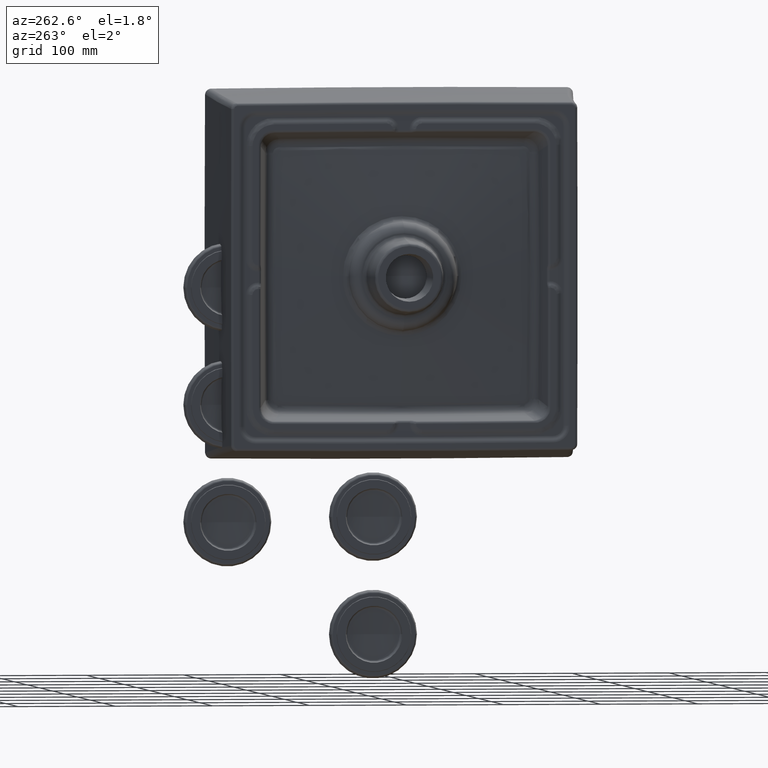
[diagram: clean part render]
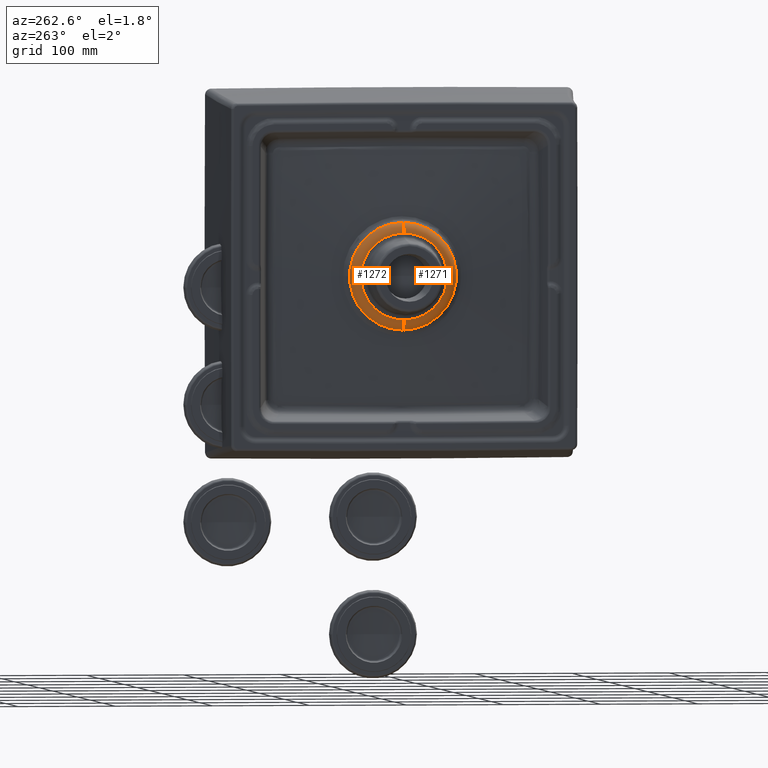
[diagram: same view with one multi-face feature highlighted, each face labeled with its STEP entity id]
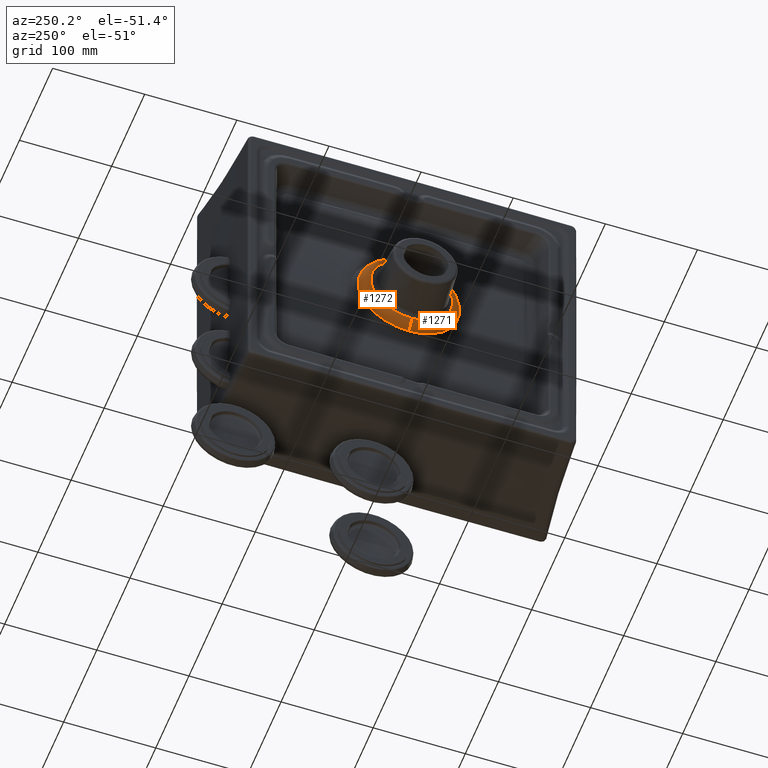
[diagram: same view with one multi-face feature highlighted, each face labeled with its STEP entity id]
A machine part, auxiliary view. The highlighted faces form ONE feature: a constant-radius fillet chain: 2 tangent blend faces with common blend radius 12 mm. The faces share edges in the B-rep.
A second angle (auxiliary view) of the same feature is appended — it is thin or edge-on in the first view.
Their STEP definitions:
[1] entity #1272 (Torus):
#1272=ADVANCED_FACE('',(#1859),#1629,.T.);
#1629=TOROIDAL_SURFACE('',#7211,43.48076211353,12.);
#1859=FACE_OUTER_BOUND('',#2307,.T.);
#2307=EDGE_LOOP('',(#3388,#3389,#3390,#3391));
#3388=ORIENTED_EDGE('',*,*,#5749,.T.);
#3389=ORIENTED_EDGE('',*,*,#5750,.T.);
#3390=ORIENTED_EDGE('',*,*,#5747,.F.);
#3391=ORIENTED_EDGE('',*,*,#5722,.F.);
#4954=VERTEX_POINT('',#14500);
#4955=VERTEX_POINT('',#14502);
#4966=VERTEX_POINT('',#15519);
#4967=VERTEX_POINT('',#15521);
#5722=EDGE_CURVE('',#4954,#4955,#6587,.T.);
#5747=EDGE_CURVE('',#4955,#4966,#6591,.T.);
#5749=EDGE_CURVE('',#4954,#4967,#6593,.T.);
#5750=EDGE_CURVE('',#4967,#4966,#6594,.T.);
#6587=CIRCLE('',#7200,55.071872029);
#6591=CIRCLE('',#7206,12.);
#6593=CIRCLE('',#7208,12.);
#6594=CIRCLE('',#7210,44.52663102651);
#7200=AXIS2_PLACEMENT_3D('',#14501,#8258,#8259);
#7206=AXIS2_PLACEMENT_3D('',#15518,#8273,#8274);
#7208=AXIS2_PLACEMENT_3D('',#15522,#8277,#8278);
#7210=AXIS2_PLACEMENT_3D('',#15524,#8281,#8282);
#7211=AXIS2_PLACEMENT_3D('',#15525,#8283,#8284);
#8258=DIRECTION('',(0.,1.,0.));
#8259=DIRECTION('',(-1.,0.,0.));
#8273=DIRECTION('',(1.335504623556E-012,0.,-1.));
#8274=DIRECTION('',(0.965925826289019,-0.258819045102705,1.28999840702113E-012));
#8277=DIRECTION('',(-1.334772570249E-012,0.,1.));
#8278=DIRECTION('',(-0.965925826289019,-0.258819045102705,-1.28929129782568E-012));
#8281=DIRECTION('',(0.,1.,0.));
#8282=DIRECTION('',(-1.,0.,0.));
#8283=DIRECTION('',(0.,-1.,0.));
#8284=DIRECTION('',(0.999767086921311,0.,0.0215817494396602));
#14500=CARTESIAN_POINT('',(-55.071872029,11.89417145877,-1.348871836067E-014));
#14501=CARTESIAN_POINT('',(0.,11.89417145877,0.));
#14502=CARTESIAN_POINT('',(55.071872029,11.89417145877,0.));
#15518=CARTESIAN_POINT('',(43.48076211353,15.,5.806877201309E-011));
#15519=CARTESIAN_POINT('',(44.52663102651,3.045663622899,0.));
#15521=CARTESIAN_POINT('',(-44.52663102651,3.045663622899,-1.090587923268E-014));
#15522=CARTESIAN_POINT('',(-43.48076211353,15.,-5.803690861228E-011));
#15524=CARTESIAN_POINT('',(0.,3.045663622899,0.));
#15525=CARTESIAN_POINT('',(0.,15.,0.));
[2] entity #1271 (Torus):
#1271=ADVANCED_FACE('',(#1858),#1628,.T.);
#1628=TOROIDAL_SURFACE('',#7209,43.48076211353,12.);
#1858=FACE_OUTER_BOUND('',#2306,.T.);
#2306=EDGE_LOOP('',(#3384,#3385,#3386,#3387));
#3384=ORIENTED_EDGE('',*,*,#5747,.T.);
#3385=ORIENTED_EDGE('',*,*,#5748,.T.);
#3386=ORIENTED_EDGE('',*,*,#5749,.F.);
#3387=ORIENTED_EDGE('',*,*,#5746,.F.);
#4954=VERTEX_POINT('',#14500);
#4955=VERTEX_POINT('',#14502);
#4966=VERTEX_POINT('',#15519);
#4967=VERTEX_POINT('',#15521);
#5746=EDGE_CURVE('',#4955,#4954,#6590,.T.);
#5747=EDGE_CURVE('',#4955,#4966,#6591,.T.);
#5748=EDGE_CURVE('',#4966,#4967,#6592,.T.);
#5749=EDGE_CURVE('',#4954,#4967,#6593,.T.);
#6590=CIRCLE('',#7204,55.071872029);
#6591=CIRCLE('',#7206,12.);
#6592=CIRCLE('',#7207,44.52663102651);
#6593=CIRCLE('',#7208,12.);
#7204=AXIS2_PLACEMENT_3D('',#15516,#8269,#8270);
#7206=AXIS2_PLACEMENT_3D('',#15518,#8273,#8274);
#7207=AXIS2_PLACEMENT_3D('',#15520,#8275,#8276);
#7208=AXIS2_PLACEMENT_3D('',#15522,#8277,#8278);
#7209=AXIS2_PLACEMENT_3D('',#15523,#8279,#8280);
#8269=DIRECTION('',(0.,1.,0.));
#8270=DIRECTION('',(1.,0.,0.));
#8273=DIRECTION('',(1.335504623556E-012,0.,-1.));
#8274=DIRECTION('',(0.965925826289019,-0.258819045102705,1.28999840702113E-012));
#8275=DIRECTION('',(0.,1.,0.));
#8276=DIRECTION('',(1.,0.,0.));
#8277=DIRECTION('',(-1.334772570249E-012,0.,1.));
#8278=DIRECTION('',(-0.965925826289019,-0.258819045102705,-1.28929129782568E-012));
#8279=DIRECTION('',(0.,-1.,0.));
#8280=DIRECTION('',(-0.999767086921311,0.,-0.0215817494396602));
#14500=CARTESIAN_POINT('',(-55.071872029,11.89417145877,-1.348871836067E-014));
#14502=CARTESIAN_POINT('',(55.071872029,11.89417145877,0.));
#15516=CARTESIAN_POINT('',(0.,11.89417145877,0.));
#15518=CARTESIAN_POINT('',(43.48076211353,15.,5.806877201309E-011));
#15519=CARTESIAN_POINT('',(44.52663102651,3.045663622899,0.));
#15520=CARTESIAN_POINT('',(0.,3.045663622899,0.));
#15521=CARTESIAN_POINT('',(-44.52663102651,3.045663622899,-1.090587923268E-014));
#15522=CARTESIAN_POINT('',(-43.48076211353,15.,-5.803690861228E-011));
#15523=CARTESIAN_POINT('',(0.,15.,0.));